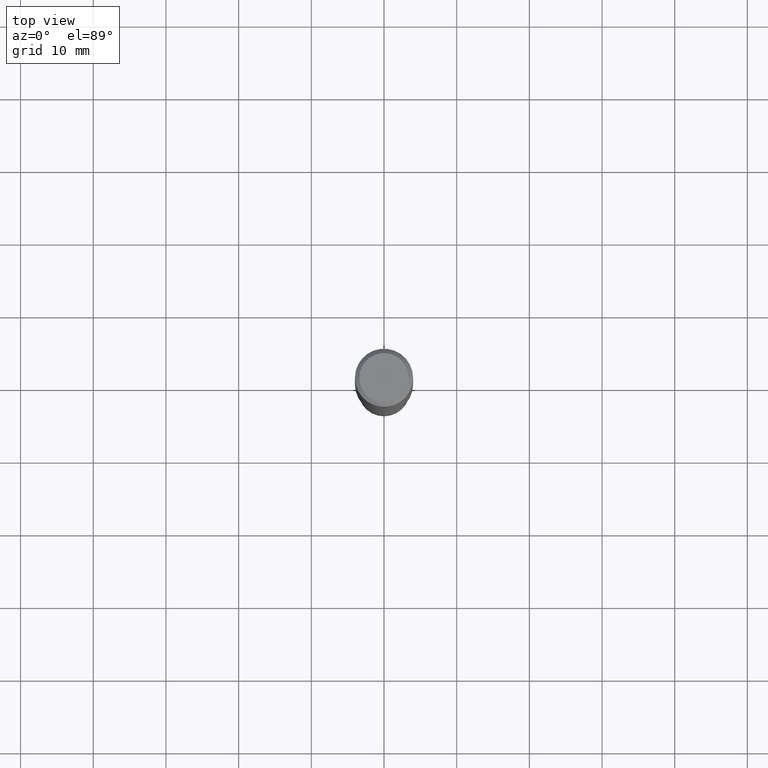
[diagram: clean part render]
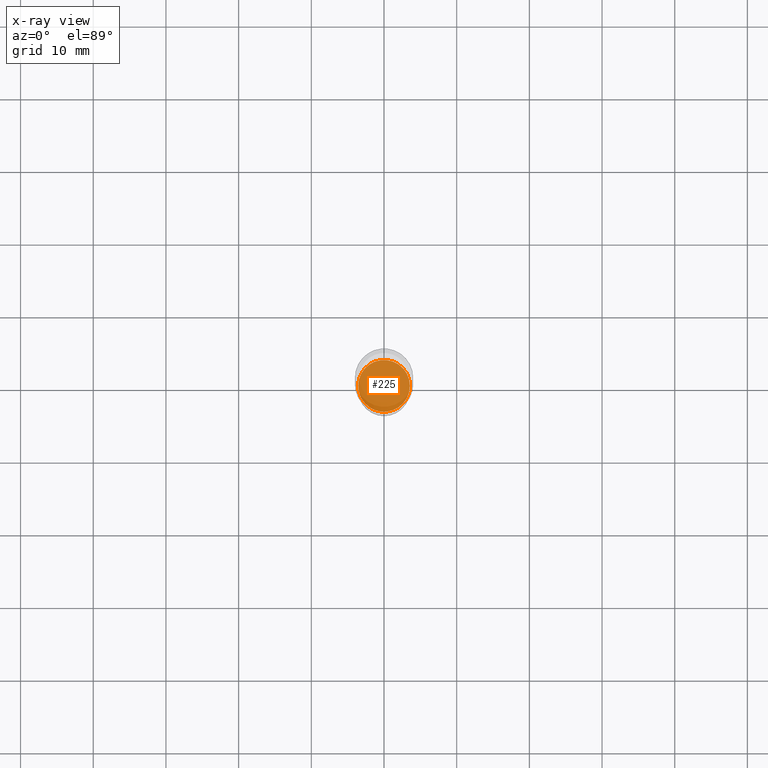
[diagram: x-ray — body ghosted, one internal face saturated and labeled with its STEP entity id]
A machine part, top view, then the same camera in x-ray: the body is ghosted and one INTERNAL B-rep face — a face not visible from any outside direction — is saturated and labeled: STEP entity #225.
In plain terms, the highlighted planar face has unit normal (-0, 0, 1).
Its self-contained STEP definition (entity closure, byte-faithful):
#34 = DIRECTION ( 'NONE',  ( 1.000000000000000000, -6.982962677686269077E-15, 0.000000000000000000 ) ) ;
#55 = CARTESIAN_POINT ( 'NONE',  ( 1.328361699218630996E-28, 1.049518717513098027E-15, -2.570000000000000284 ) ) ;
#74 = DIRECTION ( 'NONE',  ( -2.445468806185136597E-29, 3.491481338843145583E-15, 1.000000000000000000 ) ) ;
#76 = PLANE ( 'NONE',  #272 ) ;
#96 = DIRECTION ( 'NONE',  ( -2.438088387897960049E-29, 3.491481338843145188E-15, 1.000000000000000000 ) ) ;
#103 = CARTESIAN_POINT ( 'NONE',  ( 6.284854831895800067E-29, -8.973107040826881753E-15, -2.569999999999999840 ) ) ;
#108 = ORIENTED_EDGE ( 'NONE', *, *, #438, .F. ) ;
#118 = CARTESIAN_POINT ( 'NONE',  ( 0.1401000000000000023, -9.951420111970728641E-15, -2.569999999999999840 ) ) ;
#127 = CIRCLE ( 'NONE', #412, 0.1401000000000000023 ) ;
#168 = VERTEX_POINT ( 'NONE', #118 ) ;
#171 = ORIENTED_EDGE ( 'NONE', *, *, #214, .F. ) ;
#179 = DIRECTION ( 'NONE',  ( -2.445468806185136597E-29, 3.491481338843145583E-15, 1.000000000000000000 ) ) ;
#181 = AXIS2_PLACEMENT_3D ( 'NONE', #375, #74, #34 ) ;
#182 = FACE_OUTER_BOUND ( 'NONE', #462, .T. ) ;
#196 = CARTESIAN_POINT ( 'NONE',  ( -0.1401000000000000023, -7.974987440852871753E-15, -2.569999999999999840 ) ) ;
#214 = EDGE_CURVE ( 'NONE', #250, #168, #389, .T. ) ;
#225 = ADVANCED_FACE ( 'NONE', ( #182 ), #76, .F. ) ;
#250 = VERTEX_POINT ( 'NONE', #196 ) ;
#269 = DIRECTION ( 'NONE',  ( 1.000000000000000000, -6.982962677686265922E-15, 4.876176775795935793E-29 ) ) ;
#272 = AXIS2_PLACEMENT_3D ( 'NONE', #55, #96, #269 ) ;
#317 = DIRECTION ( 'NONE',  ( 1.000000000000000000, -6.982962677686269077E-15, 0.000000000000000000 ) ) ;
#375 = CARTESIAN_POINT ( 'NONE',  ( 6.284854831895800067E-29, -8.973107040826881753E-15, -2.569999999999999840 ) ) ;
#389 = CIRCLE ( 'NONE', #181, 0.1401000000000000023 ) ;
#412 = AXIS2_PLACEMENT_3D ( 'NONE', #103, #179, #317 ) ;
#438 = EDGE_CURVE ( 'NONE', #168, #250, #127, .T. ) ;
#462 = EDGE_LOOP ( 'NONE', ( #108, #171 ) ) ;